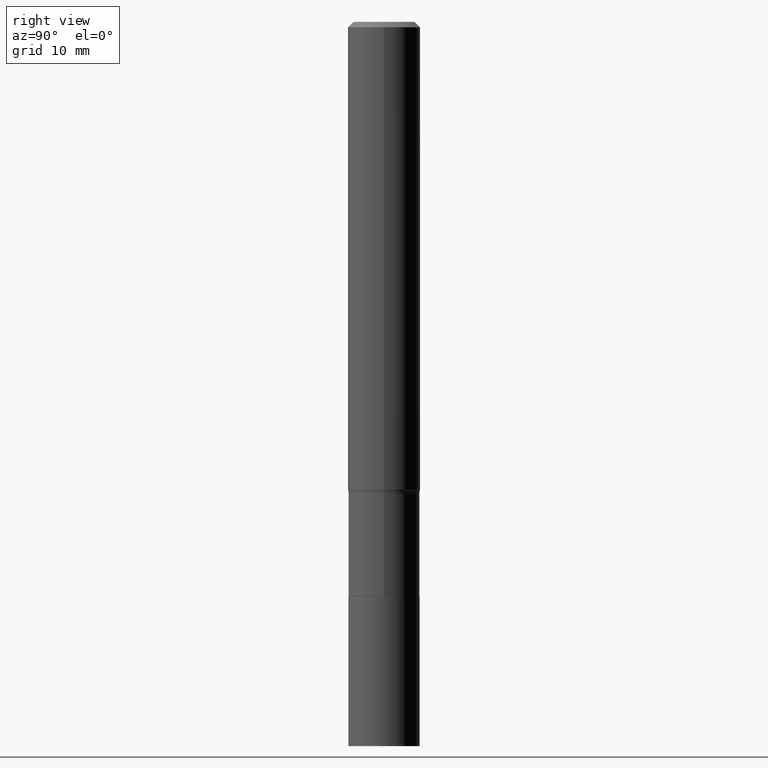
[diagram: clean part render]
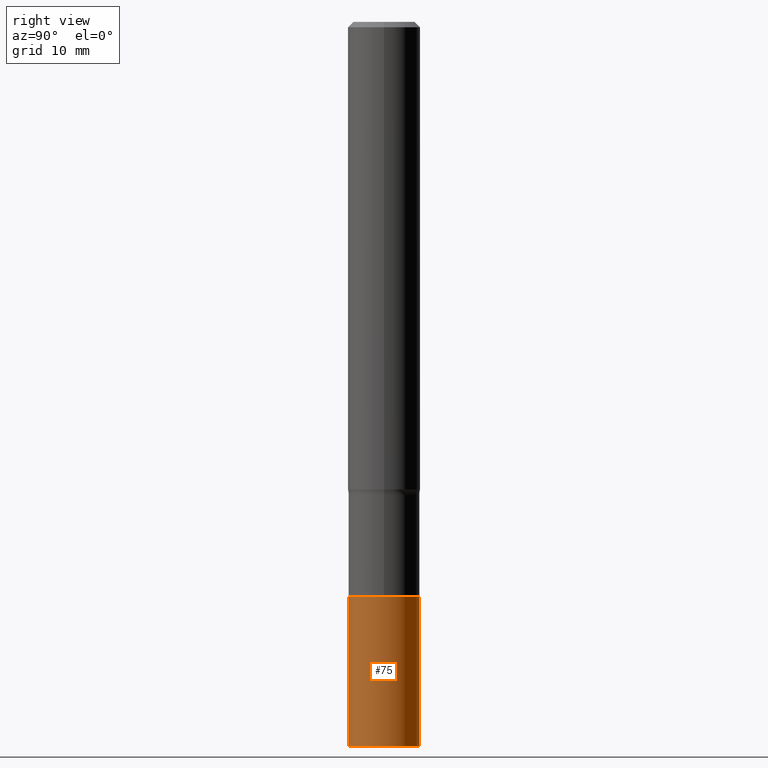
[diagram: same view with one face highlighted and labeled with its STEP entity id]
A machine part, right view. The second image highlights one B-rep face of the part: STEP entity #75.
In plain terms, the highlighted cylindrical surface (edge-blend (fillet) strip) has radius 2.9502 mm, axis along (-0, 0, 1).
Its self-contained STEP definition (entity closure, byte-faithful):
#6 = CARTESIAN_POINT ( 'NONE',  ( -8.110711150132139920E-16, -0.1161500000000065397, -1.874200000000000088 ) ) ;
#10 = AXIS2_PLACEMENT_3D ( 'NONE', #339, #189, #403 ) ;
#18 = EDGE_CURVE ( 'NONE', #453, #280, #26, .T. ) ;
#26 = CIRCLE ( 'NONE', #218, 0.1161499999999999894 ) ;
#32 = CARTESIAN_POINT ( 'NONE',  ( 8.252953875854079607E-16, 0.1161499999999917598, -2.362200000000000966 ) ) ;
#70 = CARTESIAN_POINT ( 'NONE',  ( 5.792487377357314585E-29, -8.224949339710423941E-15, -2.362200000000000966 ) ) ;
#75 = ADVANCED_FACE ( 'NONE', ( #101 ), #340, .T. ) ;
#101 = FACE_OUTER_BOUND ( 'NONE', #217, .T. ) ;
#128 = ORIENTED_EDGE ( 'NONE', *, *, #18, .T. ) ;
#138 = CARTESIAN_POINT ( 'NONE',  ( 4.583297636552184206E-29, -6.543734325259825090E-15, -1.874200000000000532 ) ) ;
#142 = DIRECTION ( 'NONE',  ( -6.982962677686265922E-15, -1.000000000000000000, 2.351999994545211787E-15 ) ) ;
#156 = LINE ( 'NONE', #6, #456 ) ;
#188 = EDGE_CURVE ( 'NONE', #280, #447, #249, .T. ) ;
#189 = DIRECTION ( 'NONE',  ( -2.477847829518707564E-29, 3.445112734529912251E-15, 1.000000000000000000 ) ) ;
#190 = CARTESIAN_POINT ( 'NONE',  ( -8.110711150132139920E-16, -0.1161500000000065397, -1.874200000000000088 ) ) ;
#198 = CARTESIAN_POINT ( 'NONE',  ( 8.252953875854138772E-16, 0.1161499999999934529, -1.874200000000000754 ) ) ;
#210 = ORIENTED_EDGE ( 'NONE', *, *, #452, .F. ) ;
#215 = DIRECTION ( 'NONE',  ( -6.982962677686265922E-15, -1.000000000000000000, 2.351999994545211393E-15 ) ) ;
#217 = EDGE_LOOP ( 'NONE', ( #128, #388, #445, #210 ) ) ;
#218 = AXIS2_PLACEMENT_3D ( 'NONE', #70, #258, #142 ) ;
#239 = VECTOR ( 'NONE', #286, 39.37007874015748143 ) ;
#249 = LINE ( 'NONE', #466, #239 ) ;
#258 = DIRECTION ( 'NONE',  ( -2.477847829518707564E-29, 3.445112734529912251E-15, 1.000000000000000000 ) ) ;
#263 = CARTESIAN_POINT ( 'NONE',  ( -8.110711150132018632E-16, -0.1161500000000082189, -2.362200000000000522 ) ) ;
#280 = VERTEX_POINT ( 'NONE', #32 ) ;
#283 = AXIS2_PLACEMENT_3D ( 'NONE', #138, #285, #215 ) ;
#285 = DIRECTION ( 'NONE',  ( -2.477847829518707564E-29, 3.445112734529912251E-15, 1.000000000000000000 ) ) ;
#286 = DIRECTION ( 'NONE',  ( -2.477847829518707564E-29, 3.445112734529911856E-15, 1.000000000000000000 ) ) ;
#292 = EDGE_CURVE ( 'NONE', #353, #447, #409, .T. ) ;
#295 = DIRECTION ( 'NONE',  ( -2.477847829518707564E-29, 3.445112734529911856E-15, 1.000000000000000000 ) ) ;
#339 = CARTESIAN_POINT ( 'NONE',  ( 4.583297636552184206E-29, -6.543734325259825090E-15, -1.874200000000000532 ) ) ;
#340 = CYLINDRICAL_SURFACE ( 'NONE', #10, 0.1161500000000000032 ) ;
#353 = VERTEX_POINT ( 'NONE', #190 ) ;
#388 = ORIENTED_EDGE ( 'NONE', *, *, #188, .T. ) ;
#403 = DIRECTION ( 'NONE',  ( -6.982962677686265922E-15, -1.000000000000000000, 2.351999994545211393E-15 ) ) ;
#409 = CIRCLE ( 'NONE', #283, 0.1161500000000000032 ) ;
#445 = ORIENTED_EDGE ( 'NONE', *, *, #292, .F. ) ;
#447 = VERTEX_POINT ( 'NONE', #198 ) ;
#452 = EDGE_CURVE ( 'NONE', #453, #353, #156, .T. ) ;
#453 = VERTEX_POINT ( 'NONE', #263 ) ;
#456 = VECTOR ( 'NONE', #295, 39.37007874015748143 ) ;
#466 = CARTESIAN_POINT ( 'NONE',  ( 8.252953875854021429E-16, 0.1161499999999934668, -1.874200000000000754 ) ) ;